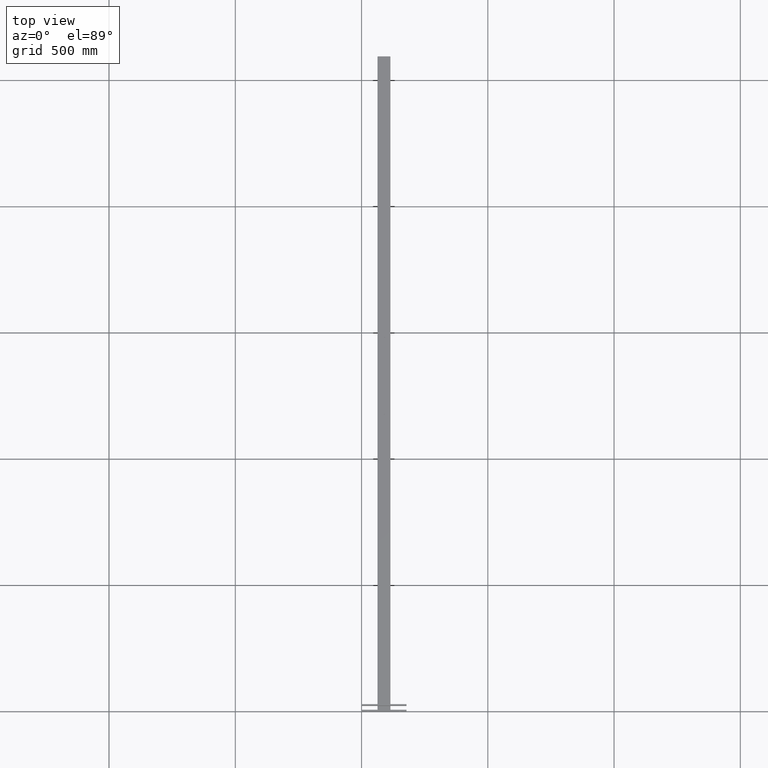
[diagram: clean part render]
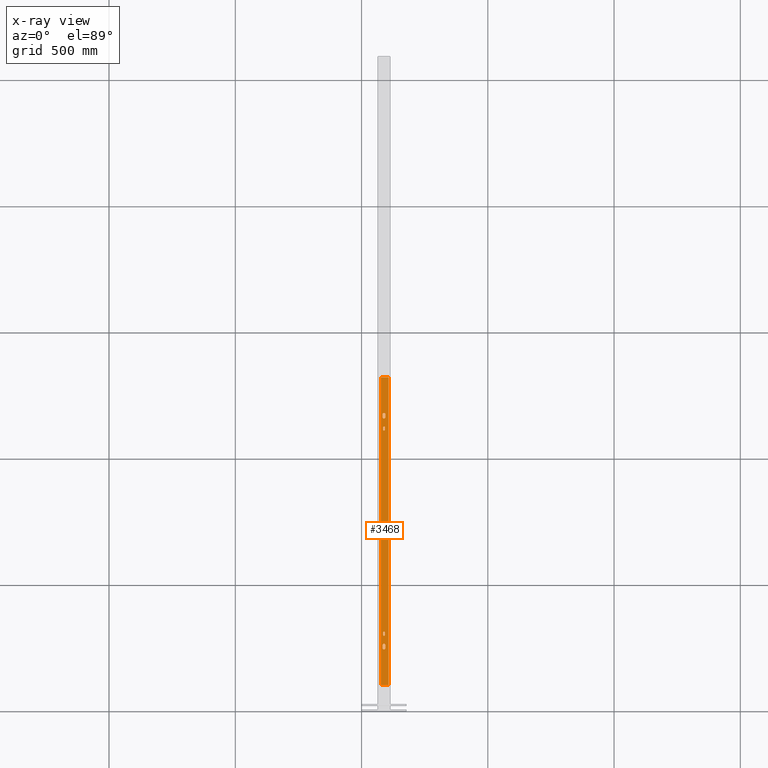
[diagram: x-ray — body ghosted, one internal face saturated and labeled with its STEP entity id]
A machine part, top view, then the same camera in x-ray: the body is ghosted and one INTERNAL B-rep face — a face not visible from any outside direction — is saturated and labeled: STEP entity #3468.
In plain terms, the highlighted planar face has unit normal (-0, -0, 1).
Its self-contained STEP definition (entity closure, byte-faithful):
#2751=CARTESIAN_POINT('',(0.0,0.0,24.0));
#2752=VERTEX_POINT('',#2751);
#2759=CARTESIAN_POINT('',(0.0,1.250000000000000,24.0));
#2760=VERTEX_POINT('',#2759);
#2761=CARTESIAN_POINT('',(0.0,1.250000000000000,24.0));
#2762=DIRECTION('',(0.0,-1.0,0.0));
#2763=VECTOR('',#2762,1.250000000000000);
#2764=LINE('',#2761,#2763);
#2765=EDGE_CURVE('',#2760,#2752,#2764,.T.);
#2804=CARTESIAN_POINT('',(0.0,0.0,-24.0));
#2805=VERTEX_POINT('',#2804);
#2812=CARTESIAN_POINT('',(0.0,0.0,24.0));
#2813=DIRECTION('',(0.0,0.0,-1.0));
#2814=VECTOR('',#2813,48.0);
#2815=LINE('',#2812,#2814);
#2816=EDGE_CURVE('',#2752,#2805,#2815,.T.);
#2837=CARTESIAN_POINT('',(0.0,0.531250000000000,-17.781250000000000));
#2838=VERTEX_POINT('',#2837);
#2845=CARTESIAN_POINT('',(0.0,0.531250000000000,-18.218750000000004));
#2846=VERTEX_POINT('',#2845);
#2847=CARTESIAN_POINT('',(0.0,0.531250000000000,-18.218750000000000));
#2848=DIRECTION('',(0.0,0.0,1.0));
#2849=VECTOR('',#2848,0.437500000000000);
#2850=LINE('',#2847,#2849);
#2851=EDGE_CURVE('',#2846,#2838,#2850,.T.);
#2877=CARTESIAN_POINT('',(0.0,0.968750000000000,-18.218750000000004));
#2878=VERTEX_POINT('',#2877);
#2879=CARTESIAN_POINT('',(0.0,0.750000000000000,-18.218750000000000));
#2880=DIRECTION('',(-1.0,0.0,0.0));
#2881=DIRECTION('',(0.0,-1.0,0.0));
#2882=AXIS2_PLACEMENT_3D('',#2879,#2880,#2881);
#2883=CIRCLE('',#2882,0.218750000000000);
#2884=EDGE_CURVE('',#2878,#2846,#2883,.T.);
#2909=CARTESIAN_POINT('',(0.0,0.968750000000000,-17.781250000000000));
#2910=VERTEX_POINT('',#2909);
#2911=CARTESIAN_POINT('',(0.0,0.968750000000000,-17.781250000000000));
#2912=DIRECTION('',(0.0,0.0,-1.0));
#2913=VECTOR('',#2912,0.437500000000004);
#2914=LINE('',#2911,#2913);
#2915=EDGE_CURVE('',#2910,#2878,#2914,.T.);
#2939=CARTESIAN_POINT('',(0.0,0.750000000000000,-17.781250000000000));
#2940=DIRECTION('',(-1.0,0.0,0.0));
#2941=DIRECTION('',(0.0,1.0,0.0));
#2942=AXIS2_PLACEMENT_3D('',#2939,#2940,#2941);
#2943=CIRCLE('',#2942,0.218750000000000);
#2944=EDGE_CURVE('',#2838,#2910,#2943,.T.);
#2965=CARTESIAN_POINT('',(0.0,0.968750000000000,17.781250000000000));
#2966=VERTEX_POINT('',#2965);
#2973=CARTESIAN_POINT('',(0.0,0.968750000000000,18.218750000000004));
#2974=VERTEX_POINT('',#2973);
#2975=CARTESIAN_POINT('',(0.0,0.968750000000000,18.218750000000000));
#2976=DIRECTION('',(0.0,0.0,-1.0));
#2977=VECTOR('',#2976,0.437500000000000);
#2978=LINE('',#2975,#2977);
#2979=EDGE_CURVE('',#2974,#2966,#2978,.T.);
#3005=CARTESIAN_POINT('',(0.0,0.531250000000000,18.218750000000004));
#3006=VERTEX_POINT('',#3005);
#3007=CARTESIAN_POINT('',(0.0,0.750000000000000,18.218750000000004));
#3008=DIRECTION('',(-1.0,0.0,0.0));
#3009=DIRECTION('',(0.0,1.0,0.0));
#3010=AXIS2_PLACEMENT_3D('',#3007,#3008,#3009);
#3011=CIRCLE('',#3010,0.218750000000000);
#3012=EDGE_CURVE('',#3006,#2974,#3011,.T.);
#3037=CARTESIAN_POINT('',(0.0,0.531250000000000,17.781250000000000));
#3038=VERTEX_POINT('',#3037);
#3039=CARTESIAN_POINT('',(0.0,0.531250000000000,17.781250000000000));
#3040=DIRECTION('',(0.0,0.0,1.0));
#3041=VECTOR('',#3040,0.437500000000004);
#3042=LINE('',#3039,#3041);
#3043=EDGE_CURVE('',#3038,#3006,#3042,.T.);
#3067=CARTESIAN_POINT('',(0.0,0.750000000000000,17.781250000000004));
#3068=DIRECTION('',(-1.0,0.0,0.0));
#3069=DIRECTION('',(0.0,-1.0,0.0));
#3070=AXIS2_PLACEMENT_3D('',#3067,#3068,#3069);
#3071=CIRCLE('',#3070,0.218750000000000);
#3072=EDGE_CURVE('',#2966,#3038,#3071,.T.);
#3094=CARTESIAN_POINT('',(0.0,0.906250000000000,-15.843750000000000));
#3095=VERTEX_POINT('',#3094);
#3102=CARTESIAN_POINT('',(0.0,0.593750000000000,-15.843750000000000));
#3103=VERTEX_POINT('',#3102);
#3104=CARTESIAN_POINT('',(0.0,0.750000000000000,-15.843750000000000));
#3105=DIRECTION('',(-1.0,0.0,0.0));
#3106=DIRECTION('',(0.0,1.0,0.0));
#3107=AXIS2_PLACEMENT_3D('',#3104,#3105,#3106);
#3108=CIRCLE('',#3107,0.156250000000000);
#3109=EDGE_CURVE('',#3103,#3095,#3108,.T.);
#3134=CARTESIAN_POINT('',(0.0,0.593750000000000,-16.156250000000000));
#3135=VERTEX_POINT('',#3134);
#3136=CARTESIAN_POINT('',(0.0,0.593750000000000,-16.156250000000000));
#3137=DIRECTION('',(0.0,0.0,1.0));
#3138=VECTOR('',#3137,0.312500000000000);
#3139=LINE('',#3136,#3138);
#3140=EDGE_CURVE('',#3135,#3103,#3139,.T.);
#3166=CARTESIAN_POINT('',(0.0,0.906250000000000,-16.156250000000000));
#3167=VERTEX_POINT('',#3166);
#3168=CARTESIAN_POINT('',(0.0,0.750000000000000,-16.156250000000000));
#3169=DIRECTION('',(-1.0,0.0,0.0));
#3170=DIRECTION('',(0.0,-1.0,0.0));
#3171=AXIS2_PLACEMENT_3D('',#3168,#3169,#3170);
#3172=CIRCLE('',#3171,0.156250000000000);
#3173=EDGE_CURVE('',#3167,#3135,#3172,.T.);
#3196=CARTESIAN_POINT('',(0.0,0.906250000000000,-15.843750000000000));
#3197=DIRECTION('',(0.0,0.0,-1.0));
#3198=VECTOR('',#3197,0.312500000000000);
#3199=LINE('',#3196,#3198);
#3200=EDGE_CURVE('',#3095,#3167,#3199,.T.);
#3222=CARTESIAN_POINT('',(0.0,0.593750000000000,15.843750000000000));
#3223=VERTEX_POINT('',#3222);
#3230=CARTESIAN_POINT('',(0.0,0.906250000000000,15.843750000000000));
#3231=VERTEX_POINT('',#3230);
#3232=CARTESIAN_POINT('',(0.0,0.750000000000000,15.843750000000000));
#3233=DIRECTION('',(-1.0,0.0,0.0));
#3234=DIRECTION('',(0.0,-1.0,0.0));
#3235=AXIS2_PLACEMENT_3D('',#3232,#3233,#3234);
#3236=CIRCLE('',#3235,0.156250000000000);
#3237=EDGE_CURVE('',#3231,#3223,#3236,.T.);
#3262=CARTESIAN_POINT('',(0.0,0.906250000000000,16.156250000000000));
#3263=VERTEX_POINT('',#3262);
#3264=CARTESIAN_POINT('',(0.0,0.906250000000000,16.156250000000000));
#3265=DIRECTION('',(0.0,0.0,-1.0));
#3266=VECTOR('',#3265,0.312500000000000);
#3267=LINE('',#3264,#3266);
#3268=EDGE_CURVE('',#3263,#3231,#3267,.T.);
#3294=CARTESIAN_POINT('',(0.0,0.593750000000000,16.156250000000000));
#3295=VERTEX_POINT('',#3294);
#3296=CARTESIAN_POINT('',(0.0,0.750000000000000,16.156250000000000));
#3297=DIRECTION('',(-1.0,0.0,0.0));
#3298=DIRECTION('',(0.0,1.0,0.0));
#3299=AXIS2_PLACEMENT_3D('',#3296,#3297,#3298);
#3300=CIRCLE('',#3299,0.156250000000000);
#3301=EDGE_CURVE('',#3295,#3263,#3300,.T.);
#3324=CARTESIAN_POINT('',(0.0,0.593750000000000,15.843750000000000));
#3325=DIRECTION('',(0.0,0.0,1.0));
#3326=VECTOR('',#3325,0.312500000000000);
#3327=LINE('',#3324,#3326);
#3328=EDGE_CURVE('',#3223,#3295,#3327,.T.);
#3347=CARTESIAN_POINT('',(0.0,1.250000000000000,-24.0));
#3348=VERTEX_POINT('',#3347);
#3356=CARTESIAN_POINT('',(0.0,0.0,-24.0));
#3357=DIRECTION('',(0.0,1.0,0.0));
#3358=VECTOR('',#3357,1.250000000000000);
#3359=LINE('',#3356,#3358);
#3360=EDGE_CURVE('',#2805,#3348,#3359,.T.);
#3422=CARTESIAN_POINT('',(0.0,1.250000000000000,24.0));
#3423=DIRECTION('',(0.0,0.0,-1.0));
#3424=VECTOR('',#3423,48.0);
#3425=LINE('',#3422,#3424);
#3426=EDGE_CURVE('',#2760,#3348,#3425,.T.);
#3433=CARTESIAN_POINT('',(0.0,1.250000000000000,0.0));
#3434=DIRECTION('',(1.0,0.0,0.0));
#3435=DIRECTION('',(0.0,0.0,-1.0));
#3436=AXIS2_PLACEMENT_3D('',#3433,#3434,#3435);
#3437=PLANE('',#3436);
#3438=ORIENTED_EDGE('',*,*,#2765,.T.);
#3439=ORIENTED_EDGE('',*,*,#2816,.T.);
#3440=ORIENTED_EDGE('',*,*,#3360,.T.);
#3441=ORIENTED_EDGE('',*,*,#3426,.F.);
#3442=EDGE_LOOP('',(#3438,#3439,#3440,#3441));
#3443=FACE_OUTER_BOUND('',#3442,.T.);
#3444=ORIENTED_EDGE('',*,*,#2915,.T.);
#3445=ORIENTED_EDGE('',*,*,#2884,.T.);
#3446=ORIENTED_EDGE('',*,*,#2851,.T.);
#3447=ORIENTED_EDGE('',*,*,#2944,.T.);
#3448=EDGE_LOOP('',(#3444,#3445,#3446,#3447));
#3449=FACE_BOUND('',#3448,.T.);
#3450=ORIENTED_EDGE('',*,*,#3043,.T.);
#3451=ORIENTED_EDGE('',*,*,#3012,.T.);
#3452=ORIENTED_EDGE('',*,*,#2979,.T.);
#3453=ORIENTED_EDGE('',*,*,#3072,.T.);
#3454=EDGE_LOOP('',(#3450,#3451,#3452,#3453));
#3455=FACE_BOUND('',#3454,.T.);
#3456=ORIENTED_EDGE('',*,*,#3173,.T.);
#3457=ORIENTED_EDGE('',*,*,#3140,.T.);
#3458=ORIENTED_EDGE('',*,*,#3109,.T.);
#3459=ORIENTED_EDGE('',*,*,#3200,.T.);
#3460=EDGE_LOOP('',(#3456,#3457,#3458,#3459));
#3461=FACE_BOUND('',#3460,.T.);
#3462=ORIENTED_EDGE('',*,*,#3301,.T.);
#3463=ORIENTED_EDGE('',*,*,#3268,.T.);
#3464=ORIENTED_EDGE('',*,*,#3237,.T.);
#3465=ORIENTED_EDGE('',*,*,#3328,.T.);
#3466=EDGE_LOOP('',(#3462,#3463,#3464,#3465));
#3467=FACE_BOUND('',#3466,.T.);
#3468=ADVANCED_FACE('',(#3443,#3449,#3455,#3461,#3467),#3437,.T.);